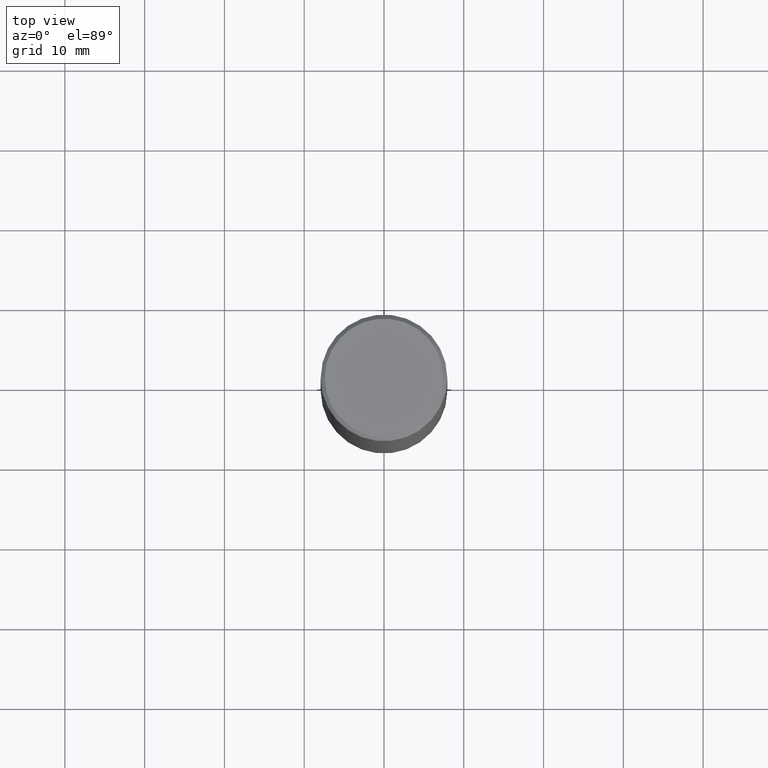
[diagram: clean part render]
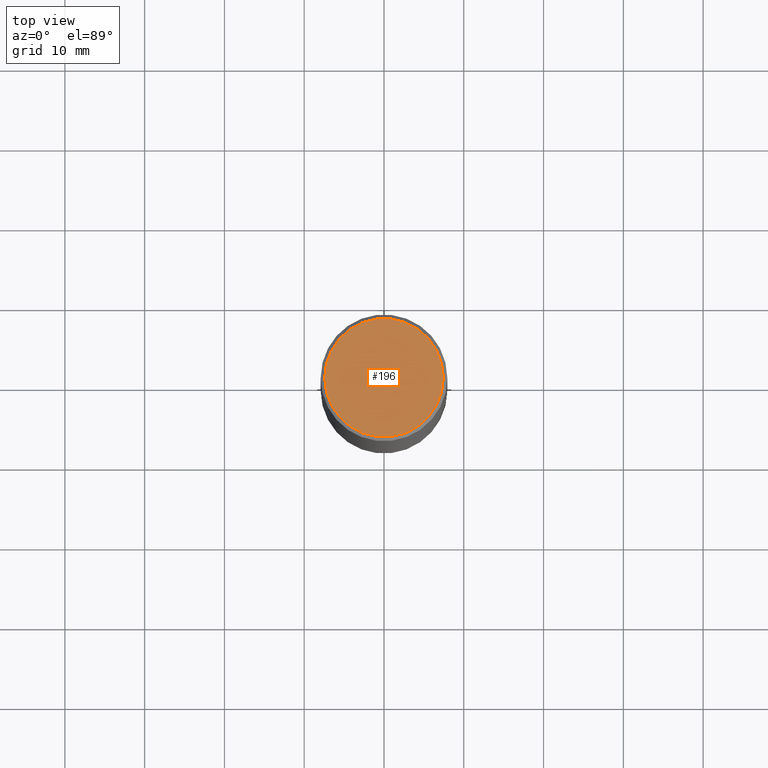
[diagram: same view with one face highlighted and labeled with its STEP entity id]
A machine part, top view. The second image highlights one B-rep face of the part: STEP entity #196.
In plain terms, the highlighted planar face has unit normal (0, -0, -1).
Its self-contained STEP definition (entity closure, byte-faithful):
#16 = DIRECTION ( 'NONE',  ( -1.000000000000000000, 6.982962677686265922E-15, -4.876176775795935793E-29 ) ) ;
#63 = VERTEX_POINT ( 'NONE', #287 ) ;
#71 = ORIENTED_EDGE ( 'NONE', *, *, #251, .T. ) ;
#108 = CARTESIAN_POINT ( 'NONE',  ( -0.2924999999999995381, 2.077431396611661033E-15, 4.268512490086005323E-18 ) ) ;
#118 = CARTESIAN_POINT ( 'NONE',  ( -1.043851414335219820E-46, 1.490343170380447200E-32, 4.268512490100411279E-18 ) ) ;
#136 = DIRECTION ( 'NONE',  ( 1.000000000000000000, -6.982962677686266711E-15, 4.876067333457697324E-29 ) ) ;
#138 = DIRECTION ( 'NONE',  ( -2.445468806185136597E-29, 3.491481338843145583E-15, 1.000000000000000000 ) ) ;
#145 = AXIS2_PLACEMENT_3D ( 'NONE', #318, #298, #16 ) ;
#148 = EDGE_CURVE ( 'NONE', #63, #194, #356, .T. ) ;
#164 = CARTESIAN_POINT ( 'NONE',  ( -1.043851414335219820E-46, 1.490343170380447200E-32, 4.268512490100411279E-18 ) ) ;
#166 = DIRECTION ( 'NONE',  ( -2.445468806185136597E-29, 3.491481338843145583E-15, 1.000000000000000000 ) ) ;
#178 = EDGE_LOOP ( 'NONE', ( #71, #186 ) ) ;
#186 = ORIENTED_EDGE ( 'NONE', *, *, #148, .T. ) ;
#194 = VERTEX_POINT ( 'NONE', #108 ) ;
#196 = ADVANCED_FACE ( 'NONE', ( #217 ), #250, .F. ) ;
#217 = FACE_OUTER_BOUND ( 'NONE', #178, .T. ) ;
#250 = PLANE ( 'NONE',  #145 ) ;
#251 = EDGE_CURVE ( 'NONE', #194, #63, #297, .T. ) ;
#287 = CARTESIAN_POINT ( 'NONE',  ( 0.2924999999999995381, -2.110215457714316776E-15, 4.268512490114932791E-18 ) ) ;
#290 = AXIS2_PLACEMENT_3D ( 'NONE', #164, #138, #136 ) ;
#297 = CIRCLE ( 'NONE', #290, 0.2924999999999995381 ) ;
#298 = DIRECTION ( 'NONE',  ( 2.438088387897960049E-29, -3.491481338843145188E-15, -1.000000000000000000 ) ) ;
#308 = DIRECTION ( 'NONE',  ( 1.000000000000000000, -6.982962677686266711E-15, 4.876067333457697324E-29 ) ) ;
#318 = CARTESIAN_POINT ( 'NONE',  ( 2.042516583223229384E-15, 0.2924999999999995381, -1.019124035366568423E-15 ) ) ;
#344 = AXIS2_PLACEMENT_3D ( 'NONE', #118, #166, #308 ) ;
#356 = CIRCLE ( 'NONE', #344, 0.2924999999999995381 ) ;